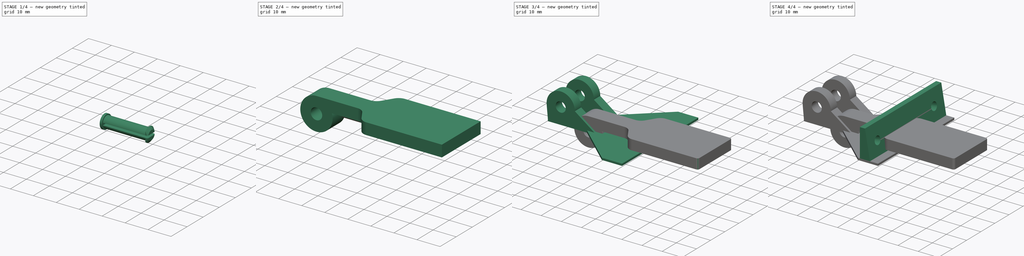
[diagram: build sequence overview — one tinted view per stage of 4, left to right]
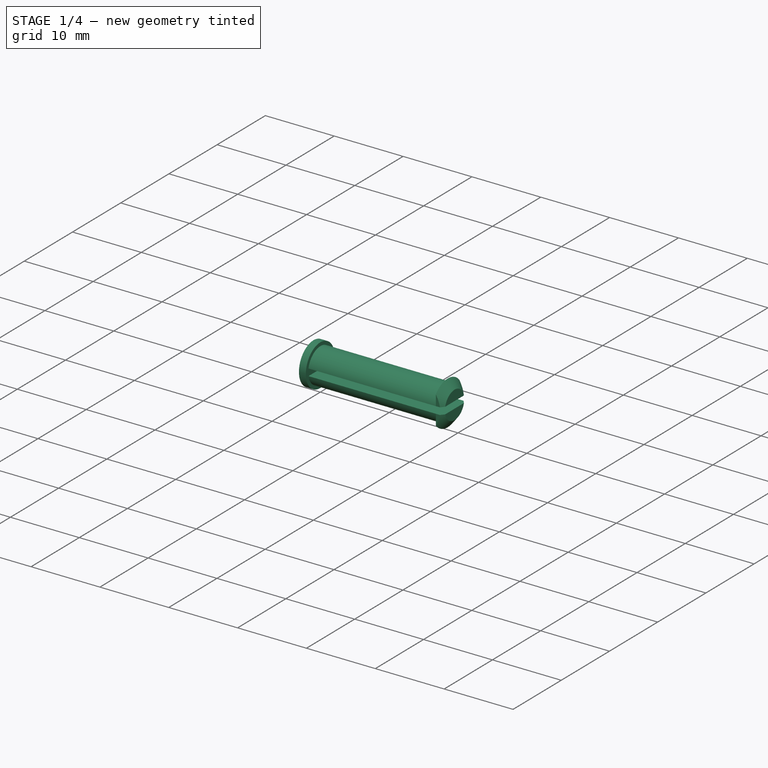
[diagram: stage 1 of 4 — iso view after this stage's code; geometry added in this stage tinted green]
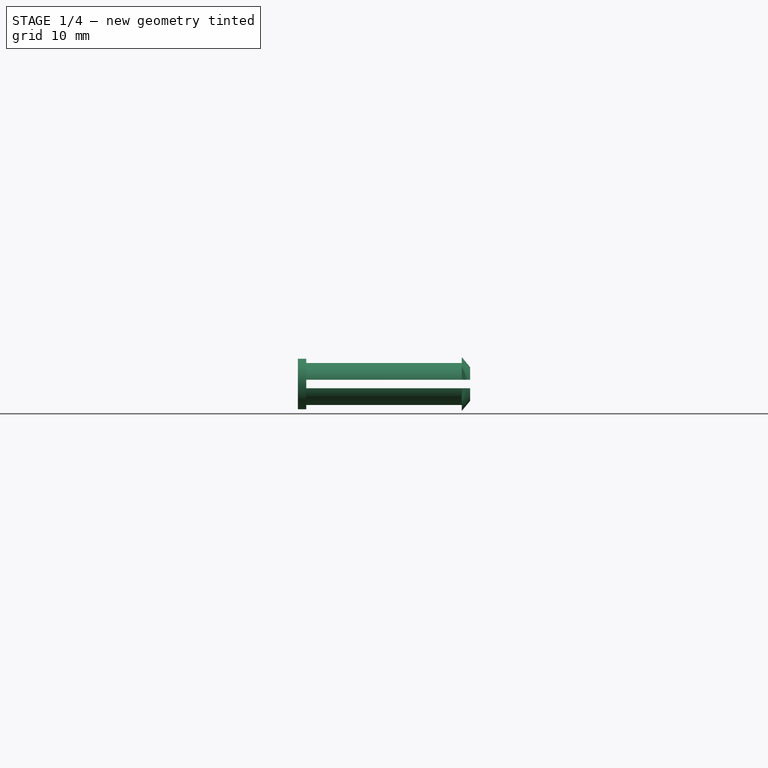
[diagram: stage 1 of 4 — front view after this stage's code; geometry added in this stage tinted green]
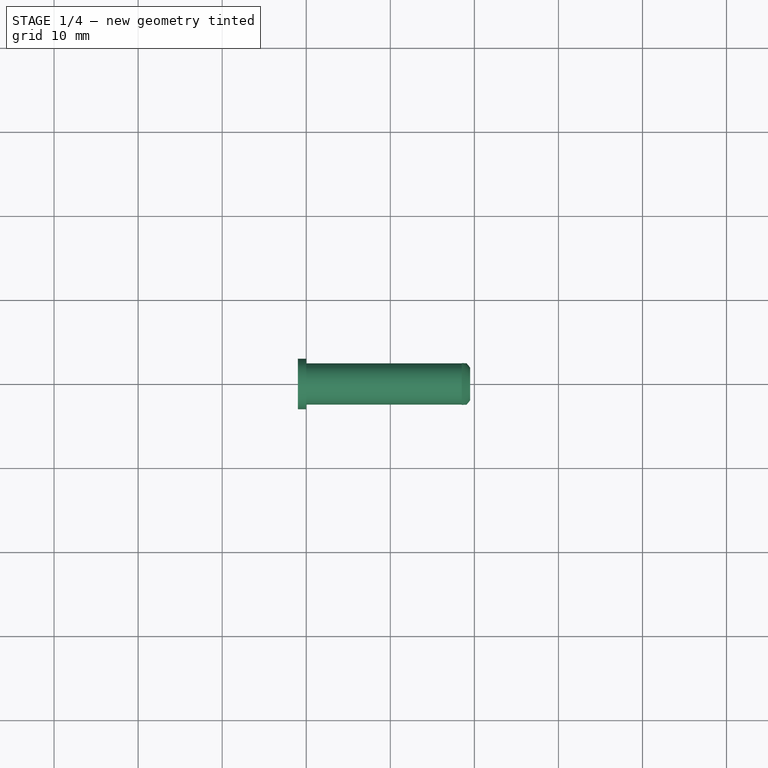
[diagram: stage 1 of 4 — top view after this stage's code; geometry added in this stage tinted green]
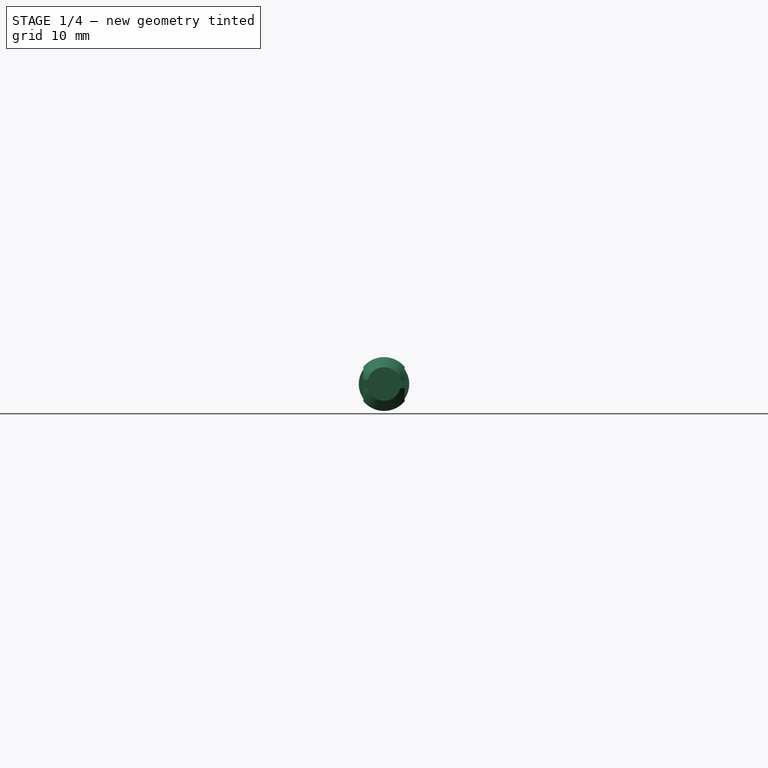
[diagram: stage 1 of 4 — right view after this stage's code; geometry added in this stage tinted green]
FCSTD DOCUMENT  (FreeCAD 2024.104R14555 (Git shallow))
Label: bloque volet
License: All rights reserved
LicenseURL: https://en.wikipedia.org/wiki/All_rights_reserved
objects: Sketcher::SketchObject×10, PartDesign::Pad×6, PartDesign::Pocket×3, PartDesign::Body×3, PartDesign::Fillet×2, PartDesign::Draft×1, PartDesign::Revolution×1
note: 62 computed .brp shape members not serialized (recipe doc carries the construction recipe); baked Part::Feature solids carry a one-line shape summary decoded from their .brp

FEATURE [PartDesign::Body] Body001  label="Doigt"
  AutoGroupSolids = false
  ClaimAllChildren = false
  ExportMode = 0
  Group = -> [Sketch006,Pad005,Sketch007,Pad006,Fillet,Fillet001]
  InvalidShape = false
  Origin = -> Origin001
  Placement = pos=(-4,-10.5,11.5) rot=(0,0,1;1.5708rad)
  Tip = -> Fillet001
  TreeRank = 59
  ValidateShape = false
  _ExportChildren = -> [Pad005,Pad006,Fillet,Fillet001]
  _GroupVersion = 1
FEATURE [Sketcher::SketchObject] Sketch008
  ArcFitTolerance = 1e-06
  AttachmentSupport = -> [XZ_Plane002]
  ExternalBSplineMaxDegree = 5
  ExternalBSplineTolerance = 0.0001
  FullyConstrained = true
  InternalTolerance = 1e-06
  InvalidShape = false
  MakeInternals = false
  MapMode = 5
  Placement = pos=(0,0,0) rot=(1,0,0;1.5708rad)
  Support = -> [XZ_Plane002]
  TreeRank = 90
  ValidateShape = false
  sketch-geometry (8):
    g0: LineSegment StartX=-1 StartY=0 StartZ=0 EndX=-1 EndY=3 EndZ=0
    g1: LineSegment StartX=-1 StartY=3 StartZ=0 EndX=0 EndY=3 EndZ=0
    g2: LineSegment StartX=0 StartY=3 StartZ=0 EndX=0 EndY=2.5 EndZ=0
    g3: LineSegment StartX=0 StartY=2.5 StartZ=0 EndX=18.5 EndY=2.5 EndZ=0
    g4: LineSegment StartX=18.5 StartY=2.5 StartZ=0 EndX=18.5 EndY=3.2 EndZ=0
    g5: LineSegment StartX=18.5 StartY=3.2 StartZ=0 EndX=19.5 EndY=2 EndZ=0
    g6: LineSegment StartX=19.5 StartY=2 StartZ=0 EndX=19.5 EndY=0 EndZ=0
    g7: LineSegment StartX=19.5 StartY=0 StartZ=0 EndX=-1 EndY=0 EndZ=0
  constraints (24):
    c: PointOnObject(g0,g-1)
    c: Vertical(g0)
    c: Coincident(g0,g1)
    c: Coincident(g1,g2)
    c: Vertical(g2)
    c: Coincident(g2,g3)
    c: Horizontal(g3)
    c: Coincident(g3,g4)
    c: Coincident(g4,g5)
    c: Coincident(g5,g6)
    c: Vertical(g6)
    c: Coincident(g6,g7)
    c: Coincident(g7,g0)
    c: Horizontal(g7)
    c: Horizontal(g1)
    c: DistanceX(g0,g1) = 1
    c: DistanceX(g2,g3) = 18.5
    c: Vertical(g4)
    c: DistanceX(g4,g5) = 1
    c: DistanceY(g2) = 2.5
    c: DistanceY(g3,g4) = 0.7
    c: PointOnObject(g2,g-2)
    c: DistanceY(g0) = 3
    c: DistanceY(g5) = 2
FEATURE [PartDesign::Revolution] Revolution
  AddSubType = 0
  Angle = 360
  Axis = (1,0,0)
  Base = (0,0,0)
  ClaimChildren = false
  Fit = 0
  FitJoin = 0
  InnerFit = 0
  InnerFitJoin = 0
  InvalidShape = false
  Linearize = true
  NewSolid = false
  Profile = -> Sketch008
  ReferenceAxis = -> X_Axis002
  Suppress = false
  TreeRank = 91
  ValidateShape = true
  _ProfileBasedVersion = 1
FEATURE [Sketcher::SketchObject] Sketch009
  ArcFitTolerance = 1e-06
  AttachmentSupport = -> [YZ_Plane002]
  ExternalBSplineMaxDegree = 5
  ExternalBSplineTolerance = 0.0001
  FullyConstrained = true
  InternalTolerance = 1e-06
  InvalidShape = false
  MakeInternals = false
  MapMode = 5
  Placement = pos=(0,0,0) rot=(0.57735,0.57735,0.57735;2.0944rad)
  Support = -> [YZ_Plane002]
  TreeRank = 92
  ValidateShape = false
  sketch-geometry (4):
    g0: LineSegment StartX=-3.86 StartY=0.5 StartZ=0 EndX=3.86 EndY=0.5 EndZ=0
    g1: LineSegment StartX=3.86 StartY=0.5 StartZ=0 EndX=3.86 EndY=-0.5 EndZ=0
    g2: LineSegment StartX=3.86 StartY=-0.5 StartZ=0 EndX=-3.86 EndY=-0.5 EndZ=0
    g3: LineSegment StartX=-3.86 StartY=-0.5 StartZ=0 EndX=-3.86 EndY=0.5 EndZ=0
  constraints (11):
    c: Coincident(g0,g1)
    c: Coincident(g1,g2)
    c: Coincident(g2,g3)
    c: Coincident(g3,g0)
    c: Horizontal(g0)
    c: Horizontal(g2)
    c: Vertical(g1)
    c: Vertical(g3)
    c: DistanceY(g1,g0) = 1
    c: Symmetric(g1,g0,g-1)
    c: DistanceX(g2,g1) = 7.72
FEATURE [PartDesign::Pocket] Pocket001
  AddSubType = 1
  AlongSketchNormal = false
  AutoTaperInnerAngle = true
  BaseFeature = -> Revolution
  CheckUpToFaceLimits = true
  ClaimChildren = false
  Direction = (-1,3e-16,-3e-16)
  Fit = 0
  FitJoin = 0
  InnerFit = 0
  InnerFitJoin = 0
  InvalidShape = false
  Length = 26
  Length2 = 10
  Linearize = true
  NewSolid = false
  Profile = -> Sketch009
  ReferenceAxis = -> Sketch009 [N_Axis]
  Reversed = true
  Suppress = false
  TaperInnerAngle = 0
  TaperInnerAngleRev = 0
  TreeRank = 93
  Type = 0
  ValidateShape = true
  _ProfileBasedVersion = 1
  _Version = 1
FEATURE [Sketcher::SketchObject] Sketch010
  ArcFitTolerance = 1e-06
  AttachmentSupport = -> [XY_Plane002]
  ExternalBSplineMaxDegree = 5
  ExternalBSplineTolerance = 0.0001
  ExternalGeometry = -> [Pocket001]
  FullyConstrained = true
  InternalTolerance = 1e-06
  InvalidShape = false
  MakeInternals = false
  MapMode = 5
  Support = -> [XY_Plane002]
  TreeRank = 94
  ValidateShape = false
  sketch-geometry (8):
    g0: LineSegment StartX=15.1 StartY=2.44949 StartZ=0 EndX=23.12 EndY=2.44949 EndZ=0
    g1: LineSegment StartX=23.12 StartY=2.44949 StartZ=0 EndX=23.12 EndY=-2.44949 EndZ=0
    g2: LineSegment StartX=23.12 StartY=-2.44949 StartZ=0 EndX=15.1 EndY=-2.44949 EndZ=0
    g3: LineSegment StartX=15.1 StartY=-2.44949 StartZ=0 EndX=15.1 EndY=-3.86051 EndZ=0
    g4: LineSegment StartX=15.1 StartY=-3.86051 StartZ=0 EndX=30.32 EndY=-3.86051 EndZ=0
    g5: LineSegment StartX=30.32 StartY=-3.86051 StartZ=0 EndX=30.32 EndY=7.01949 EndZ=0
    g6: LineSegment StartX=30.32 StartY=7.01949 StartZ=0 EndX=15.1 EndY=7.01949 EndZ=0
    g7: LineSegment StartX=15.1 StartY=7.01949 StartZ=0 EndX=15.1 EndY=2.44949 EndZ=0
  constraints (24):
    c: PointOnObject(g0,g-3)
    c: Horizontal(g0)
    c: Coincident(g0,g1)
    c: Coincident(g1,g2)
    c: PointOnObject(g2,g-4)
    c: Coincident(g2,g3)
    c: Coincident(g3,g4)
    c: Horizontal(g4)
    c: Coincident(g4,g5)
    c: Coincident(g5,g6)
    c: Coincident(g6,g7)
    c: Coincident(g7,g0)
    c: Vertical(g7)
    c: Vertical(g3)
    c: Horizontal(g2)
    c: Vertical(g5)
    c: Vertical(g1)
    c: Horizontal(g6)
    c: DistanceY(g7,g7) = 4.57
    c: DistanceX(g6,g6) = 15.22
    c: DistanceY(g5,g5) = 10.88
    c: DistanceX(g0,g0) = 8.02
    c: Equal(g2,g0)
    c: DistanceX(g3) = 15.1
FEATURE [PartDesign::Pocket] Pocket002
  AddSubType = 1
  AlongSketchNormal = false
  AutoTaperInnerAngle = true
  BaseFeature = -> Pocket001
  CheckUpToFaceLimits = true
  ClaimChildren = false
  Direction = (0,0,-1)
  Fit = 0
  FitJoin = 0
  InnerFit = 0
  InnerFitJoin = 0
  InvalidShape = false
  Length = 50
  Length2 = 10
  Linearize = true
  Midplane = true
  NewSolid = false
  Profile = -> Sketch010
  ReferenceAxis = -> Sketch010 [N_Axis]
  Suppress = false
  TaperInnerAngle = 0
  TaperInnerAngleRev = 0
  TreeRank = 95
  Type = 0
  ValidateShape = true
  _ProfileBasedVersion = 1
  _Version = 1
FEATURE [PartDesign::Body] Body002  label="Axe"
  AutoGroupSolids = false
  ClaimAllChildren = false
  ExportMode = 0
  Group = -> [Sketch008,Revolution,Sketch009,Pocket001,Sketch010,Pocket002]
  InvalidShape = false
  Origin = -> Origin002
  Placement = pos=(-9.25,-10.5,11.5) rot=(0,0,1;0rad)
  Tip = -> Pocket002
  TreeRank = 89
  ValidateShape = false
  _ExportChildren = -> [Revolution,Pocket001,Pocket002]
  _GroupVersion = 1
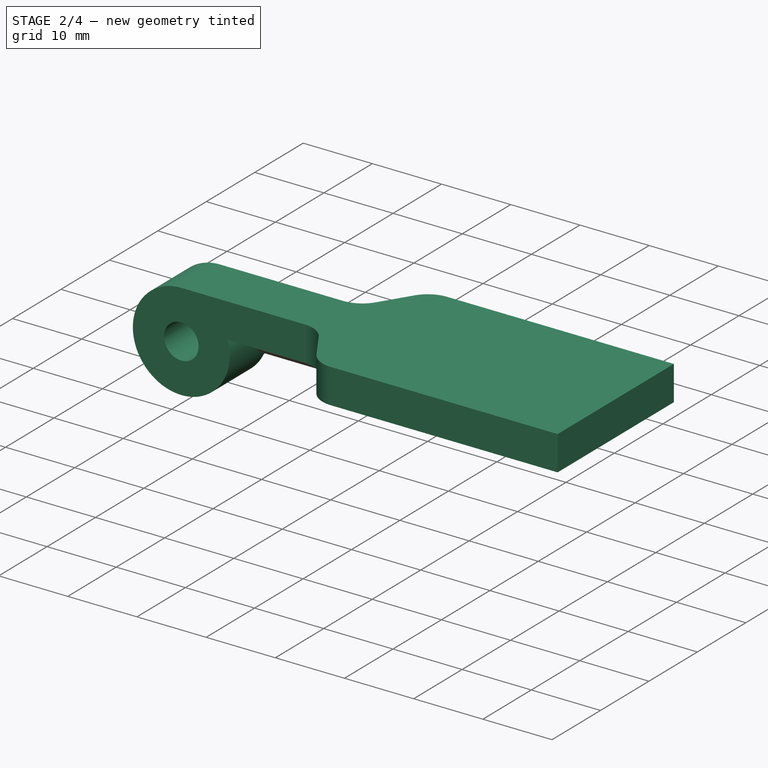
[diagram: stage 2 of 4 — iso view after this stage's code; geometry added in this stage tinted green]
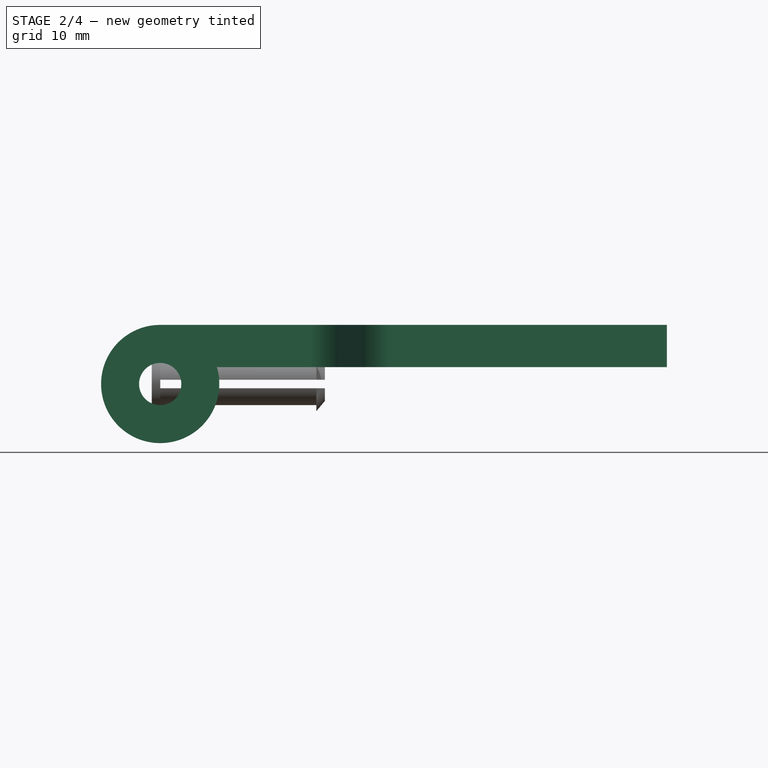
[diagram: stage 2 of 4 — front view after this stage's code; geometry added in this stage tinted green]
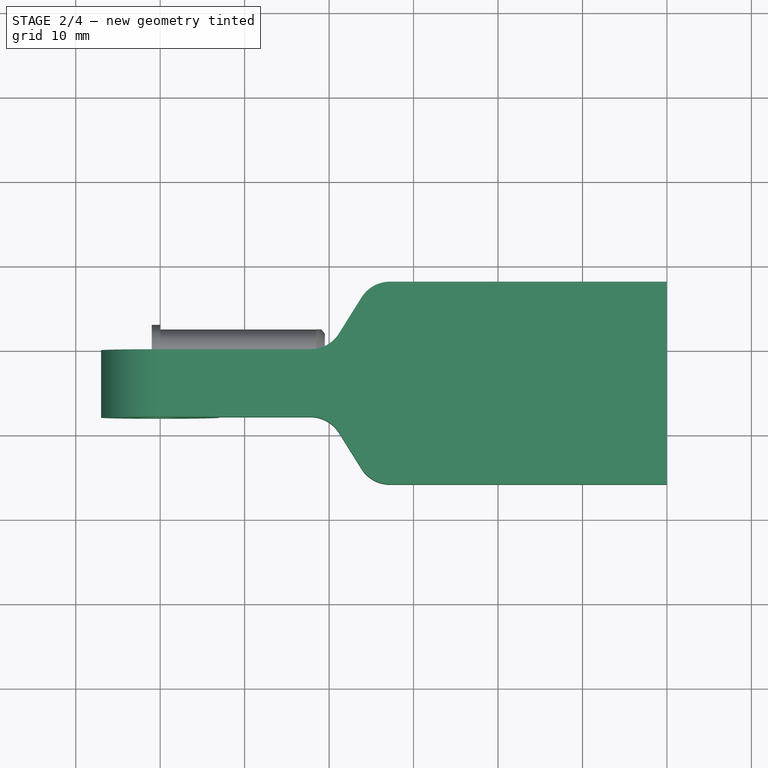
[diagram: stage 2 of 4 — top view after this stage's code; geometry added in this stage tinted green]
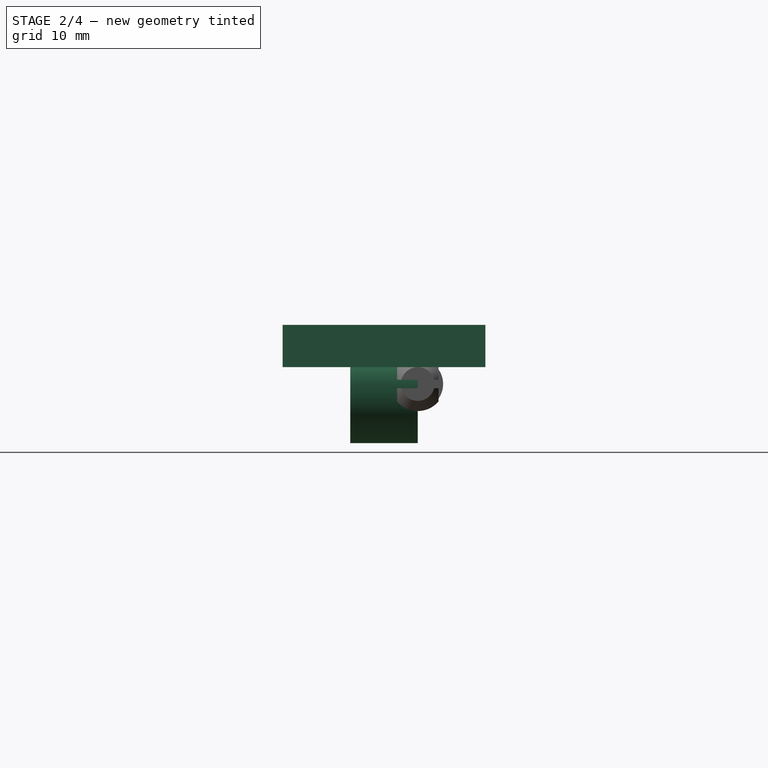
[diagram: stage 2 of 4 — right view after this stage's code; geometry added in this stage tinted green]
FEATURE [PartDesign::Body] Body  label="Support"
  AutoGroupSolids = false
  ClaimAllChildren = false
  ExportMode = 0
  Group = -> [Sketch,Pad,Sketch001,Pad001,Sketch002,Pad002,Sketch003,Pad003,Draft,Sketch004,Pocket]
  InvalidShape = false
  Origin = -> Origin
  Placement = pos=(0,0,0) rot=(0.60812,0.60812,-0.510274;2.19793rad)
  Tip = -> Pocket
  TreeRank = 10
  ValidateShape = false
  _ExportChildren = -> [Pad,Pad001,Pad002,Pad003,Draft,Pocket]
  _GroupVersion = 1
FEATURE [Sketcher::SketchObject] Sketch006
  ArcFitTolerance = 1e-06
  AttachmentSupport = -> [XZ_Plane001]
  ExternalBSplineMaxDegree = 5
  ExternalBSplineTolerance = 0.0001
  FullyConstrained = true
  InternalTolerance = 1e-06
  InvalidShape = false
  MakeInternals = false
  MapMode = 5
  Placement = pos=(0,0,0) rot=(1,0,0;1.5708rad)
  Support = -> [XZ_Plane001]
  TreeRank = 68
  ValidateShape = false
  sketch-geometry (5):
    g0: Circle CenterX=0 CenterY=0 CenterZ=0 NormalX=0 NormalY=0 NormalZ=1 AngleXU=0 Radius=2.5
    g1: ArcOfCircle CenterX=0 CenterY=0 CenterZ=0 NormalX=0 NormalY=0 NormalZ=1 AngleXU=0 Radius=7 StartAngle=1.5708 EndAngle=6.57294
    g2: LineSegment StartX=2e-15 StartY=7 StartZ=0 EndX=60 EndY=7 EndZ=0
    g3: LineSegment StartX=60 StartY=7 StartZ=0 EndX=60 EndY=2 EndZ=0
    g4: LineSegment StartX=60 StartY=2 StartZ=0 EndX=6.7082 EndY=2 EndZ=0
  constraints (13):
    c: Coincident(g0,g-1)
    c: Coincident(g1,g0)
    c: Coincident(g2,g3)
    c: Coincident(g3,g4)
    c: Horizontal(g2)
    c: Horizontal(g4)
    c: Vertical(g3)
    c: Diameter(g0) = 5
    c: Diameter(g1) = 14
    c: DistanceY(g3,g2) = 5
    c: DistanceX(g2,g2) = 60
    c: Tangent(g1,g2) = 1.5708
    c: Coincident(g4,g1)
FEATURE [PartDesign::Pad] Pad005
  AddSubType = 0
  AlongSketchNormal = false
  AutoTaperInnerAngle = true
  CheckUpToFaceLimits = true
  ClaimChildren = false
  Direction = (0,-1,2e-16)
  Fit = 0
  FitJoin = 0
  InnerFit = 0
  InnerFitJoin = 0
  InvalidShape = false
  Length = 8
  Length2 = 10
  Linearize = true
  NewSolid = false
  Profile = -> Sketch006
  ReferenceAxis = -> Sketch006 [N_Axis]
  Suppress = false
  TaperInnerAngle = 0
  TaperInnerAngleRev = 0
  TreeRank = 72
  Type = 0
  ValidateShape = true
  _ProfileBasedVersion = 1
FEATURE [Sketcher::SketchObject] Sketch007
  ArcFitTolerance = 1e-06
  AttachmentOffset = pos=(0,0,-5) rot=(0,0,1;0rad)
  AttachmentSupport = -> [Pad005]
  ExternalBSplineMaxDegree = 5
  ExternalBSplineTolerance = 0.0001
  FullyConstrained = true
  InternalTolerance = 1e-06
  InvalidShape = false
  MakeInternals = false
  MapMode = 5
  Placement = pos=(0,4e-16,2) rot=(0,0,1;0rad)
  Support = -> [Pad005]
  TreeRank = 73
  ValidateShape = false
  sketch-geometry (6):
    g0: LineSegment StartX=20 StartY=0 StartZ=0 EndX=25 EndY=8 EndZ=0
    g1: LineSegment StartX=25 StartY=8 StartZ=0 EndX=60 EndY=8 EndZ=0
    g2: LineSegment StartX=60 StartY=8 StartZ=0 EndX=60 EndY=-16 EndZ=0
    g3: LineSegment StartX=60 StartY=-16 StartZ=0 EndX=25 EndY=-16 EndZ=0
    g4: LineSegment StartX=25 StartY=-16 StartZ=0 EndX=20 EndY=-8 EndZ=0
    g5: LineSegment StartX=20 StartY=-8 StartZ=0 EndX=20 EndY=0 EndZ=0
  constraints (18):
    c: PointOnObject(g0,g-1)
    c: Coincident(g0,g1)
    c: Horizontal(g1)
    c: Coincident(g1,g2)
    c: Vertical(g2)
    c: Coincident(g2,g3)
    c: Horizontal(g3)
    c: Coincident(g3,g4)
    c: Coincident(g4,g5)
    c: Coincident(g5,g0)
    c: DistanceX(g0,g1) = 35
    c: Equal(g3,g1)
    c: DistanceY(g2,g2) = 24
    c: DistanceY(g1) = 8
    c: Vertical(g0,g4)
    c: DistanceX(g0,g0) = 5
    c: DistanceX(g0) = 20
    c: DistanceY(g4,g0) = 8
FEATURE [PartDesign::Pad] Pad006
  AddSubType = 0
  AlongSketchNormal = false
  AutoTaperInnerAngle = true
  BaseFeature = -> Pad005
  CheckUpToFaceLimits = true
  ClaimChildren = false
  Direction = (0,2e-16,1)
  Fit = 0
  FitJoin = 0
  InnerFit = 0
  InnerFitJoin = 0
  InvalidShape = false
  Length = 5
  Length2 = 10
  Linearize = true
  NewSolid = false
  Profile = -> Sketch007
  ReferenceAxis = -> Sketch007 [N_Axis]
  Suppress = false
  TaperInnerAngle = 0
  TaperInnerAngleRev = 0
  TreeRank = 74
  Type = 0
  ValidateShape = true
  _ProfileBasedVersion = 1
FEATURE [PartDesign::Fillet] Fillet
  AddSubType = 0
  Base = -> Pad006 [Edge21,Edge25,Edge13,Edge11]
  BaseFeature = -> Pad006
  InvalidShape = false
  NewSolid = false
  Radius = 4
  SupportTransform = false
  Suppress = false
  TreeRank = 75
  UseAllEdges = false
  ValidateShape = true
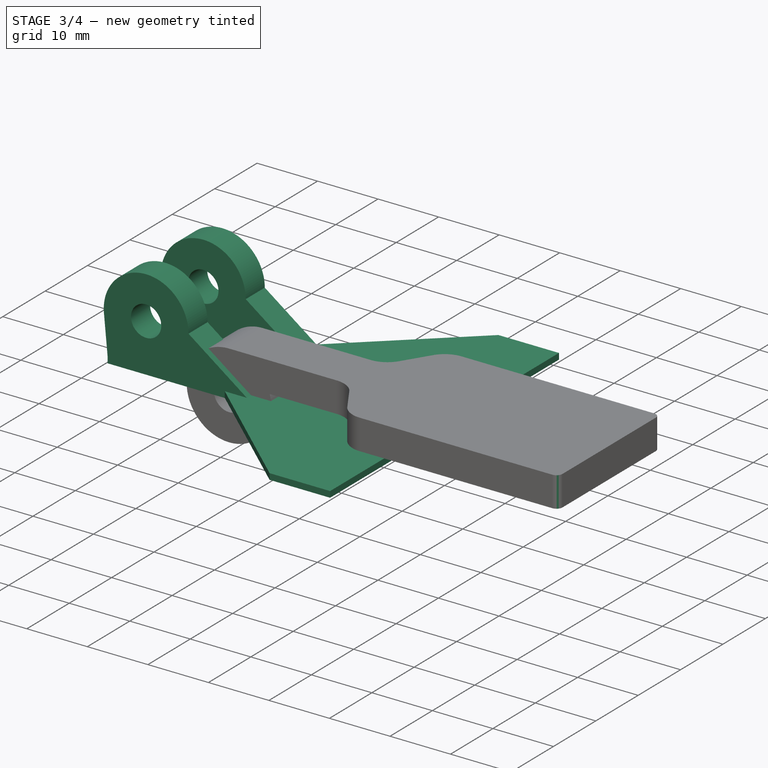
[diagram: stage 3 of 4 — iso view after this stage's code; geometry added in this stage tinted green]
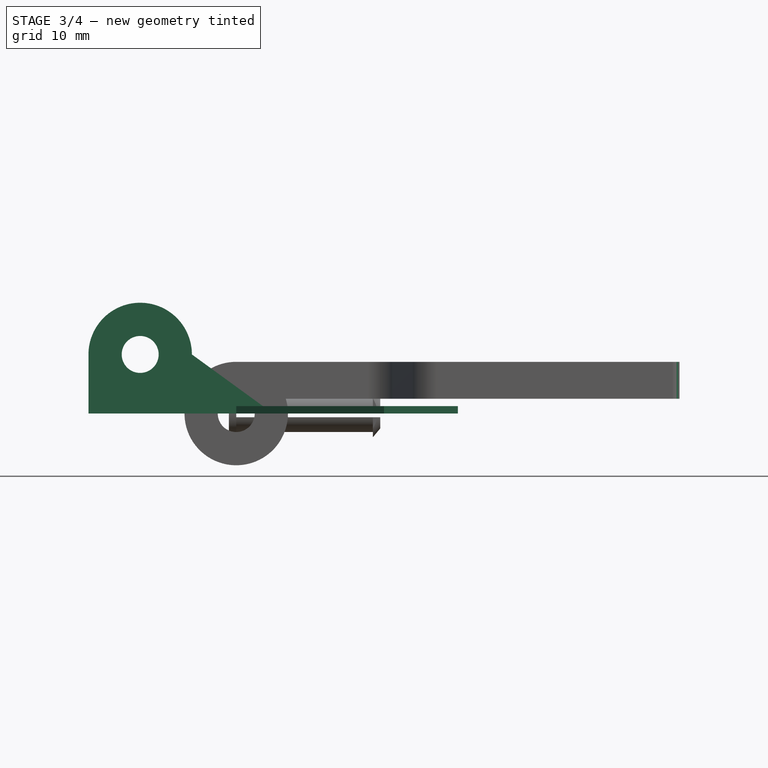
[diagram: stage 3 of 4 — front view after this stage's code; geometry added in this stage tinted green]
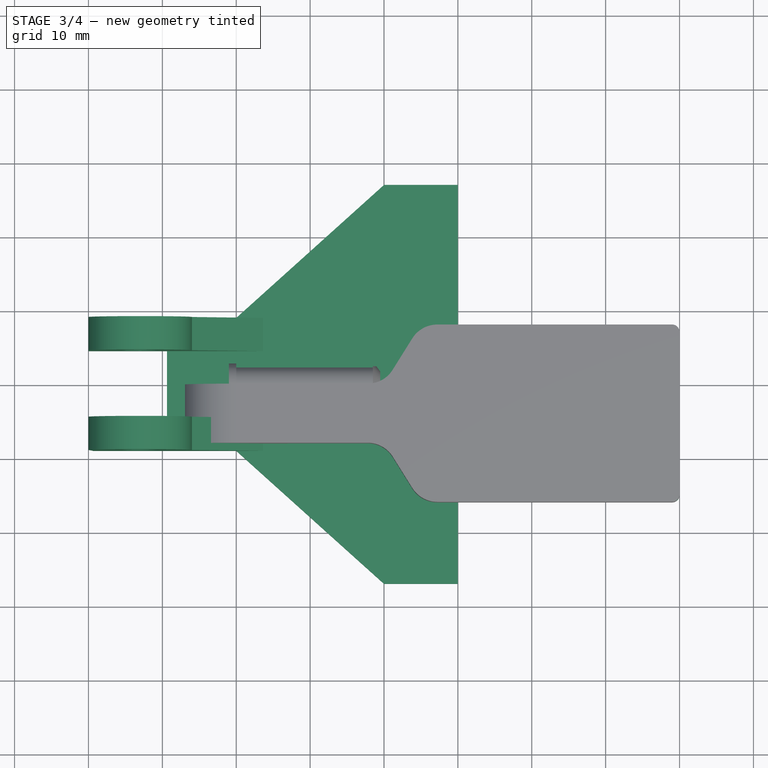
[diagram: stage 3 of 4 — top view after this stage's code; geometry added in this stage tinted green]
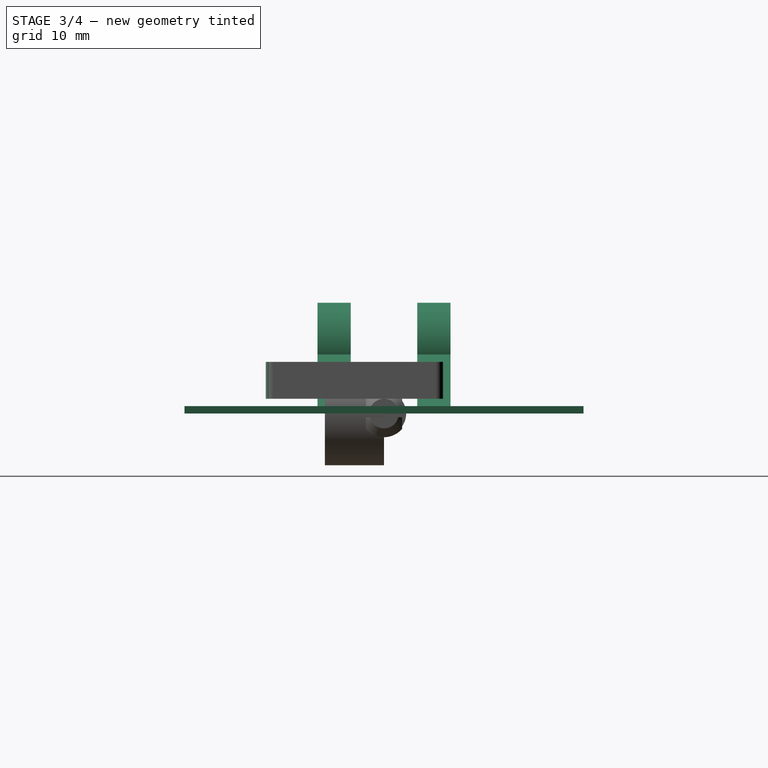
[diagram: stage 3 of 4 — right view after this stage's code; geometry added in this stage tinted green]
FEATURE [Sketcher::SketchObject] Sketch
  ArcFitTolerance = 1e-06
  ExternalBSplineMaxDegree = 5
  ExternalBSplineTolerance = 0.0001
  FullyConstrained = true
  InternalTolerance = 1e-06
  InvalidShape = false
  MakeInternals = false
  TreeRank = 11
  ValidateShape = false
  sketch-geometry (12):
    g0: LineSegment StartX=-20 StartY=-9 StartZ=0 EndX=0 EndY=-9 EndZ=0
    g1: LineSegment StartX=1e-16 StartY=-9 StartZ=0 EndX=20 EndY=-27 EndZ=0
    g2: LineSegment StartX=20 StartY=-27 StartZ=0 EndX=30 EndY=-27 EndZ=0
    g3: LineSegment StartX=30 StartY=-27 StartZ=0 EndX=30 EndY=27 EndZ=0
    g4: LineSegment StartX=-20 StartY=9 StartZ=0 EndX=0 EndY=9 EndZ=0
    g5: LineSegment StartX=0 StartY=9 StartZ=0 EndX=20 EndY=27 EndZ=0
    g6: LineSegment StartX=20 StartY=27 StartZ=0 EndX=30 EndY=27 EndZ=0
    g7: LineSegment StartX=-20 StartY=9 StartZ=0 EndX=-20 EndY=4.5 EndZ=0
    g8: LineSegment StartX=-20 StartY=4.5 StartZ=0 EndX=-10 EndY=4.5 EndZ=0
    g9: LineSegment StartX=-10 StartY=4.5 StartZ=0 EndX=-10 EndY=-4.5 EndZ=0
    g10: LineSegment StartX=-10 StartY=-4.5 StartZ=0 EndX=-20 EndY=-4.5 EndZ=0
    g11: LineSegment StartX=-20 StartY=-4.5 StartZ=0 EndX=-20 EndY=-9 EndZ=0
  constraints (34):
    c: Horizontal(g0)
    c: Coincident(g0,g1)
    c: Coincident(g1,g2)
    c: Horizontal(g2)
    c: Coincident(g2,g3)
    c: Vertical(g3)
    c: Horizontal(g4)
    c: Coincident(g4,g5)
    c: Coincident(g5,g6)
    c: Coincident(g6,g3)
    c: Horizontal(g6)
    c: Symmetric(g5,g1,g-1)
    c: Symmetric(g4,g0,g-1)
    c: DistanceY(g0,g4) = 18
    c: DistanceX(g4,g4) = 20
    c: DistanceY(g2,g3) = 54
    c: DistanceX(g4,g5) = 20
    c: DistanceX(g4,g3) = 50
    c: PointOnObject(g4,g-2)
    c: Coincident(g7,g4)
    c: Vertical(g7)
    c: Coincident(g7,g8)
    c: Horizontal(g8)
    c: Coincident(g8,g9)
    c: Vertical(g9)
    c: Coincident(g9,g10)
    c: Horizontal(g10)
    c: Coincident(g10,g11)
    c: Coincident(g11,g0)
    c: Vertical(g11)
    c: DistanceY(g7,g4) = 4.5
    c: DistanceY(g0,g10) = 4.5
    c: DistanceX(g10,g9) = 10
    c: Vertical(g0,g7)
FEATURE [PartDesign::Pad] Pad
  AddSubType = 0
  AlongSketchNormal = false
  AutoTaperInnerAngle = true
  CheckUpToFaceLimits = true
  ClaimChildren = false
  Direction = (0,0,1)
  Fit = 0
  FitJoin = 0
  InnerFit = 0
  InnerFitJoin = 0
  InvalidShape = false
  Length = 1
  Length2 = 10
  Linearize = true
  NewSolid = false
  Profile = -> Sketch
  ReferenceAxis = -> Sketch [N_Axis]
  Suppress = false
  TaperInnerAngle = 0
  TaperInnerAngleRev = 0
  TreeRank = 12
  Type = 0
  ValidateShape = true
  _ProfileBasedVersion = 1
FEATURE [Sketcher::SketchObject] Sketch001
  ArcFitTolerance = 1e-06
  AttachmentOffset = pos=(0,0,-9) rot=(0,0,1;0rad)
  AttachmentSupport = -> [XZ_Plane]
  ExternalBSplineMaxDegree = 5
  ExternalBSplineTolerance = 0.0001
  FullyConstrained = true
  InternalTolerance = 1e-06
  InvalidShape = false
  MakeInternals = false
  MapMode = 5
  Placement = pos=(0,9,-2e-15) rot=(1,0,0;1.5708rad)
  Support = -> [XZ_Plane]
  TreeRank = 13
  ValidateShape = false
  sketch-geometry (5):
    g0: ArcOfCircle CenterX=-13 CenterY=8 CenterZ=0 NormalX=0 NormalY=0 NormalZ=1 AngleXU=0 Radius=7 StartAngle=0 EndAngle=3.14159
    g1: Circle CenterX=-13 CenterY=8 CenterZ=0 NormalX=0 NormalY=0 NormalZ=1 AngleXU=0 Radius=2.5
    g2: LineSegment StartX=-20 StartY=8 StartZ=0 EndX=-20 EndY=0 EndZ=0
    g3: LineSegment StartX=-20 StartY=0 StartZ=0 EndX=5 EndY=0 EndZ=0
    g4: LineSegment StartX=5 StartY=0 StartZ=0 EndX=-6 EndY=8 EndZ=0
  constraints (15):
    c: Diameter(g0) = 14
    c: Diameter(g1) = 5
    c: Vertical(g2)
    c: Coincident(g2,g3)
    c: Horizontal(g3)
    c: Coincident(g3,g4)
    c: DistanceY(g2,g2) = 8
    c: Coincident(g0,g2)
    c: Coincident(g0,g4)
    c: DistanceX(g2,g3) = 25
    c: Horizontal(g0,g0)
    c: Coincident(g0,g1)
    c: Horizontal(g0,g0)
    c: DistanceX(g-1,g3) = 5
    c: PointOnObject(g3,g-1)
FEATURE [PartDesign::Pad] Pad001
  AddSubType = 0
  AlongSketchNormal = false
  AutoTaperInnerAngle = true
  BaseFeature = -> Pad
  CheckUpToFaceLimits = true
  ClaimChildren = false
  Direction = (0,-1,2e-16)
  Fit = 0
  FitJoin = 0
  InnerFit = 0
  InnerFitJoin = 0
  InvalidShape = false
  Length = 5
  Length2 = 10
  Linearize = true
  NewSolid = false
  Profile = -> Sketch001
  ReferenceAxis = -> Sketch001 [N_Axis]
  Suppress = false
  TaperInnerAngle = 0
  TaperInnerAngleRev = 0
  TreeRank = 14
  Type = 0
  ValidateShape = true
  _ProfileBasedVersion = 1
FEATURE [Sketcher::SketchObject] Sketch002
  ArcFitTolerance = 1e-06
  AttachmentOffset = pos=(0,0,4.5) rot=(0,0,1;0rad)
  AttachmentSupport = -> [XZ_Plane]
  ExternalBSplineMaxDegree = 5
  ExternalBSplineTolerance = 0.0001
  ExternalGeometry = -> [Pad001]
  FullyConstrained = true
  InternalTolerance = 1e-06
  InvalidShape = false
  MakeInternals = false
  MapMode = 5
  Placement = pos=(0,-4.5,-1e-15) rot=(1,0,0;1.5708rad)
  Support = -> [XZ_Plane]
  TreeRank = 15
  ValidateShape = false
  sketch-geometry (5):
    g0: Circle CenterX=-13 CenterY=8 CenterZ=0 NormalX=0 NormalY=0 NormalZ=1 AngleXU=0 Radius=2.5
    g1: ArcOfCircle CenterX=-13 CenterY=8 CenterZ=0 NormalX=0 NormalY=0 NormalZ=1 AngleXU=0 Radius=7 StartAngle=-2.7e-15 EndAngle=3.23711
    g2: LineSegment StartX=-19.9681 StartY=7.33236 StartZ=0 EndX=-19.3614 EndY=1 EndZ=0
    g3: LineSegment StartX=-19.3614 StartY=1 StartZ=0 EndX=3.625 EndY=1 EndZ=0
    g4: LineSegment StartX=3.625 StartY=1 StartZ=0 EndX=-6 EndY=8 EndZ=0
  constraints (11):
    c: Coincident(g0,g-4)
    c: Tangent(g0,g-4)
    c: Coincident(g1,g0)
    c: PointOnObject(g-7,g1)
    c: Coincident(g2,g-6)
    c: Coincident(g2,g3)
    c: Coincident(g3,g-7)
    c: Coincident(g3,g4)
    c: Coincident(g4,g-7)
    c: Tangent(g1,g2) = -1.5708
    c: PointOnObject(g1,g4)
FEATURE [PartDesign::Pad] Pad002
  AddSubType = 0
  AlongSketchNormal = false
  AutoTaperInnerAngle = true
  BaseFeature = -> Pad001
  CheckUpToFaceLimits = true
  ClaimChildren = false
  Direction = (0,-1,0)
  Fit = 0
  FitJoin = 0
  InnerFit = 0
  InnerFitJoin = 0
  InvalidShape = false
  Length = 5
  Length2 = 10
  Linearize = true
  NewSolid = false
  Profile = -> Sketch002
  ReferenceAxis = -> Sketch002 [N_Axis]
  Suppress = false
  TaperInnerAngle = 0
  TaperInnerAngleRev = 0
  TreeRank = 16
  Type = 0
  ValidateShape = true
  _ProfileBasedVersion = 1
FEATURE [PartDesign::Fillet] Fillet001
  AddSubType = 0
  Base = -> Fillet [Edge40,Edge49]
  BaseFeature = -> Fillet
  InvalidShape = false
  NewSolid = false
  Radius = 1
  SupportTransform = false
  Suppress = false
  TreeRank = 76
  UseAllEdges = false
  ValidateShape = true
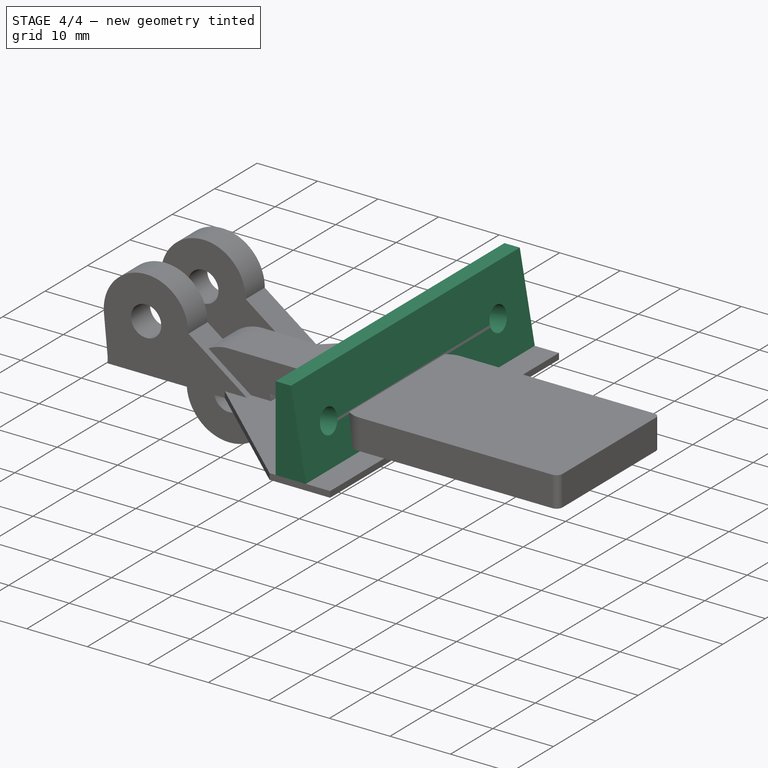
[diagram: stage 4 of 4 — iso view after this stage's code; geometry added in this stage tinted green]
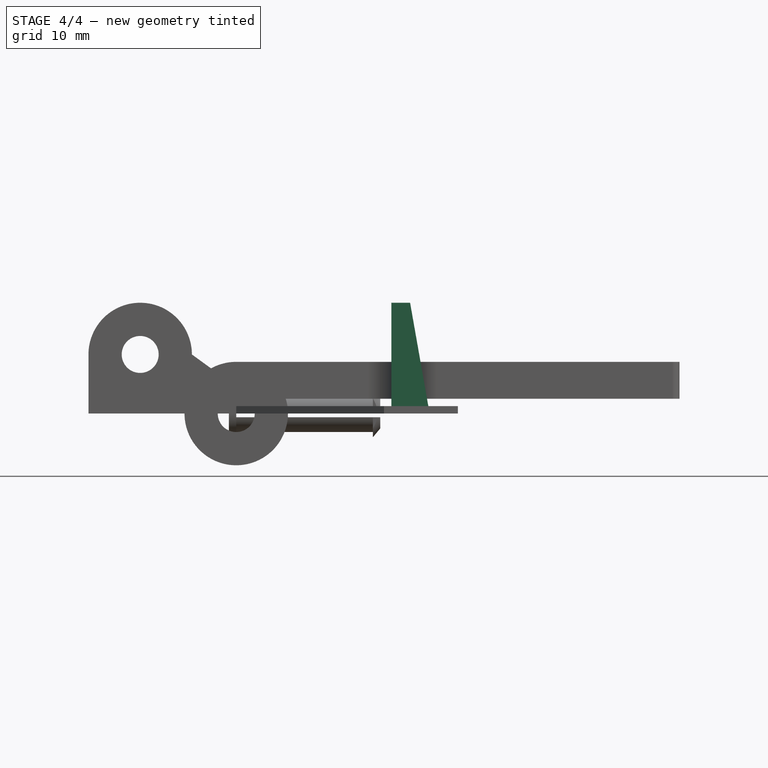
[diagram: stage 4 of 4 — front view after this stage's code; geometry added in this stage tinted green]
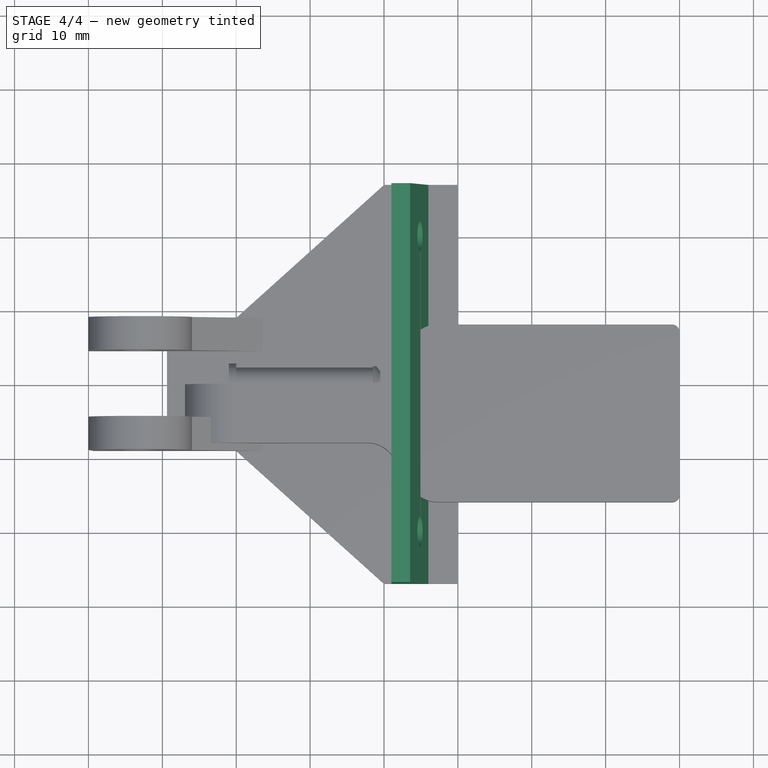
[diagram: stage 4 of 4 — top view after this stage's code; geometry added in this stage tinted green]
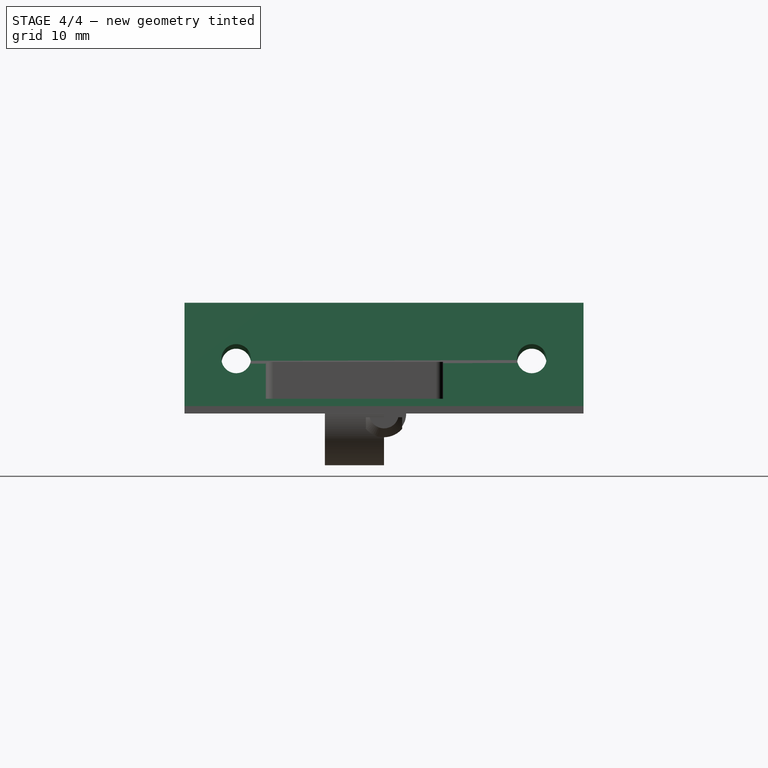
[diagram: stage 4 of 4 — right view after this stage's code; geometry added in this stage tinted green]
FEATURE [Sketcher::SketchObject] Sketch003
  ArcFitTolerance = 1e-06
  AttachmentSupport = -> [XY_Plane]
  ExternalBSplineMaxDegree = 5
  ExternalBSplineTolerance = 0.0001
  FullyConstrained = true
  InternalTolerance = 1e-06
  InvalidShape = false
  MakeInternals = false
  MapMode = 5
  Support = -> [XY_Plane]
  TreeRank = 17
  ValidateShape = false
  sketch-geometry (4):
    g0: LineSegment StartX=21 StartY=27 StartZ=0 EndX=26 EndY=27 EndZ=0
    g1: LineSegment StartX=26 StartY=27 StartZ=0 EndX=26 EndY=-27 EndZ=0
    g2: LineSegment StartX=26 StartY=-27 StartZ=0 EndX=21 EndY=-27 EndZ=0
    g3: LineSegment StartX=21 StartY=-27 StartZ=0 EndX=21 EndY=27 EndZ=0
  constraints (11):
    c: Coincident(g0,g1)
    c: Coincident(g1,g2)
    c: Coincident(g2,g3)
    c: Coincident(g3,g0)
    c: Horizontal(g0)
    c: Horizontal(g2)
    c: DistanceX(g0,g0) = 5
    c: Symmetric(g0,g2,g-1)
    c: Vertical(g1)
    c: DistanceY(g1,g0) = 54
    c: DistanceX(g0) = 21
FEATURE [PartDesign::Pad] Pad003
  AddSubType = 0
  AlongSketchNormal = false
  AutoTaperInnerAngle = true
  BaseFeature = -> Pad002
  CheckUpToFaceLimits = true
  ClaimChildren = false
  Direction = (0,0,1)
  Fit = 0
  FitJoin = 0
  InnerFit = 0
  InnerFitJoin = 0
  InvalidShape = false
  Length = 15
  Length2 = 10
  Linearize = true
  NewSolid = false
  Profile = -> Sketch003
  ReferenceAxis = -> Sketch003 [N_Axis]
  Suppress = false
  TaperInnerAngle = 0
  TaperInnerAngleRev = 0
  TreeRank = 18
  Type = 0
  ValidateShape = true
  _ProfileBasedVersion = 1
FEATURE [PartDesign::Draft] Draft
  AddSubType = 0
  Angle = 10
  Base = -> Pad003 [Face39,Face32]
  BaseFeature = -> Pad003
  InvalidShape = false
  NewSolid = false
  Reversed = true
  SupportTransform = false
  Suppress = false
  TreeRank = 19
  ValidateShape = true
FEATURE [Sketcher::SketchObject] Sketch004
  ArcFitTolerance = 1e-06
  AttachmentSupport = -> [Draft]
  ExternalBSplineMaxDegree = 5
  ExternalBSplineTolerance = 0.0001
  FullyConstrained = true
  InternalTolerance = 1e-06
  InvalidShape = false
  MakeInternals = false
  MapMode = 5
  Placement = pos=(25.387,0,4.47642) rot=(0.540716,0.540716,0.6444;1.99673rad)
  Support = -> [Draft]
  TreeRank = 20
  ValidateShape = false
  sketch-geometry (2):
    g0: Circle CenterX=-20 CenterY=3 CenterZ=0 NormalX=0 NormalY=0 NormalZ=1 AngleXU=0 Radius=2
    g1: Circle CenterX=20 CenterY=3 CenterZ=0 NormalX=0 NormalY=0 NormalZ=1 AngleXU=0 Radius=2
  constraints (5):
    c: Equal(g1,g0)
    c: Diameter(g1) = 4
    c: DistanceX(g0,g1) = 40
    c: Symmetric(g1,g0,g-2)
    c: DistanceY(g0) = 3
FEATURE [PartDesign::Pocket] Pocket
  AddSubType = 1
  AlongSketchNormal = false
  AutoTaperInnerAngle = true
  BaseFeature = -> Draft
  CheckUpToFaceLimits = true
  ClaimChildren = false
  Direction = (-0.984808,0,-0.173648)
  Fit = 0
  FitJoin = 0
  InnerFit = 0
  InnerFitJoin = 0
  InvalidShape = false
  Length = 5
  Length2 = 10
  Linearize = true
  NewSolid = false
  Profile = -> Sketch004
  ReferenceAxis = -> Sketch004 [N_Axis]
  Suppress = false
  TaperInnerAngle = 0
  TaperInnerAngleRev = 0
  TreeRank = 21
  Type = 0
  ValidateShape = true
  _ProfileBasedVersion = 1
  _Version = 1
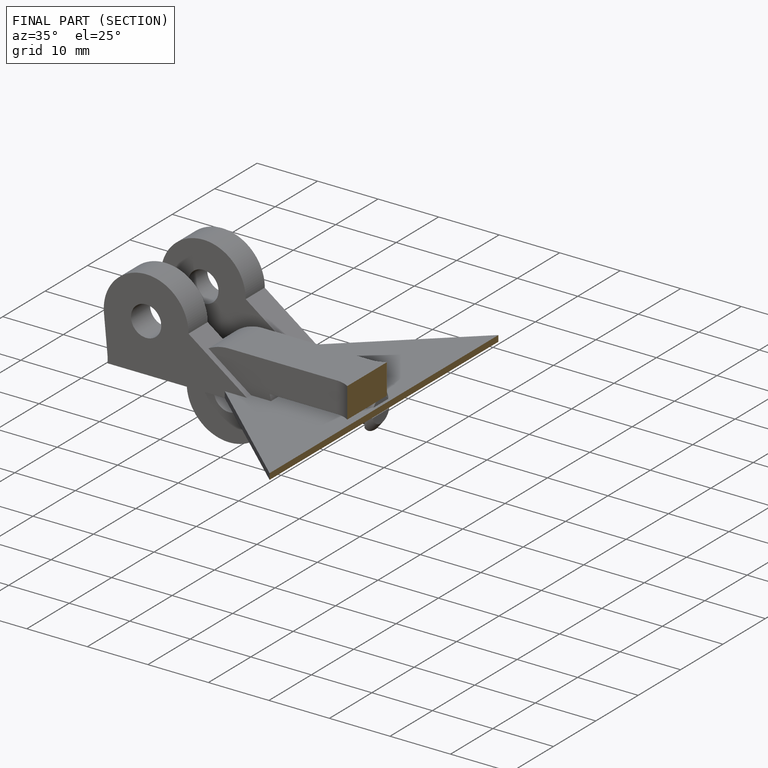
[diagram: finished part — half-section view (interior)]
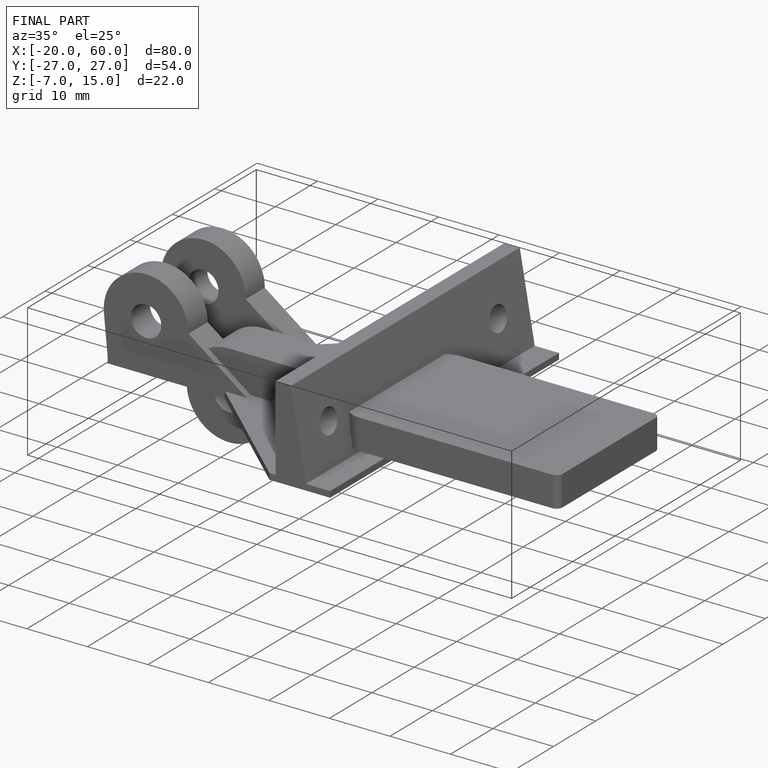
[diagram: finished part — iso view with bounding-box wireframe]
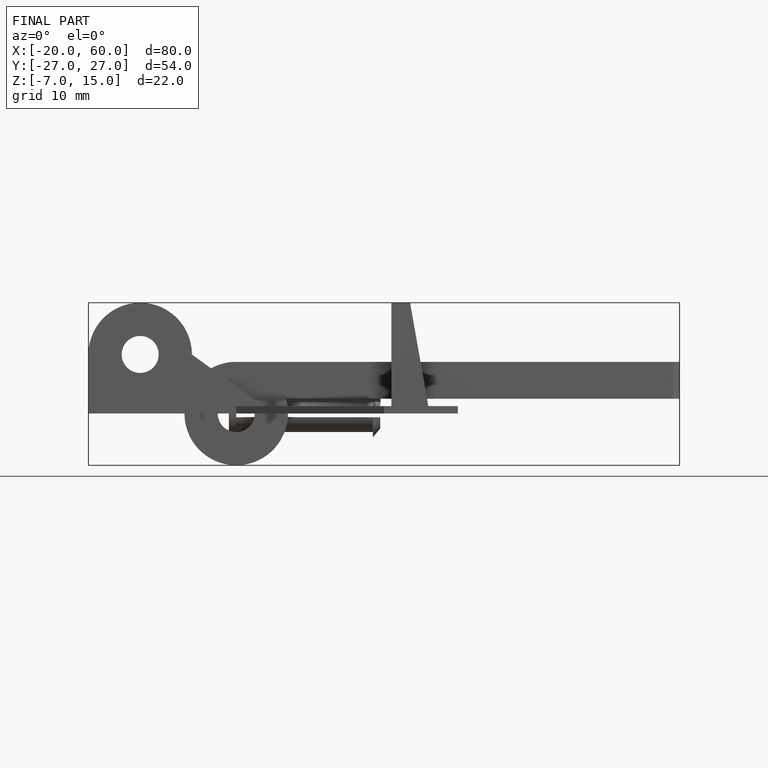
[diagram: finished part — front view with bounding-box wireframe]
